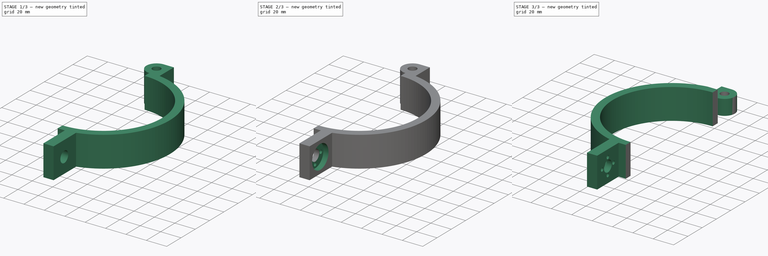
[diagram: build sequence overview — one tinted view per stage of 3, left to right]
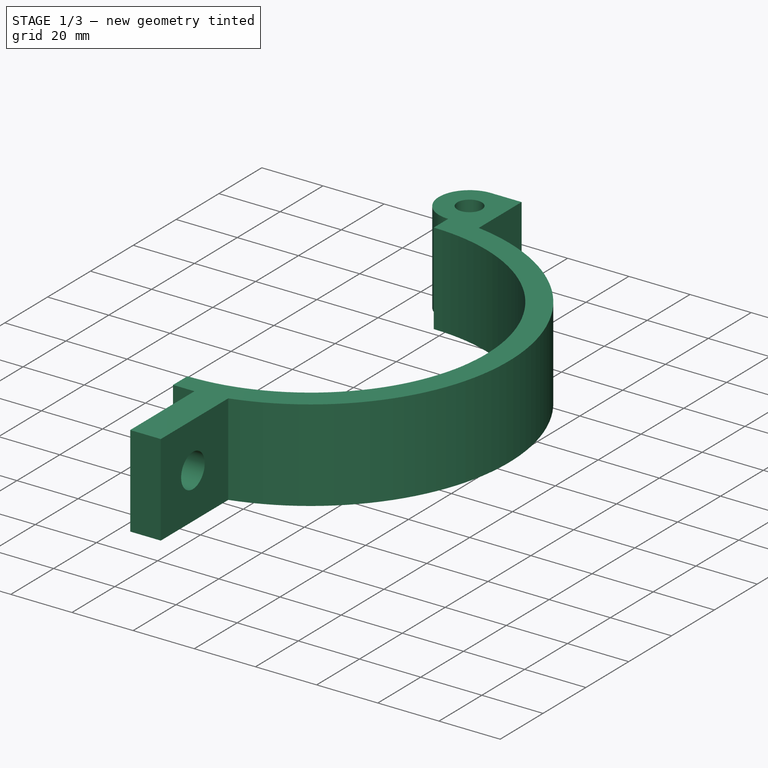
[diagram: stage 1 of 3 — iso view after this stage's code; geometry added in this stage tinted green]
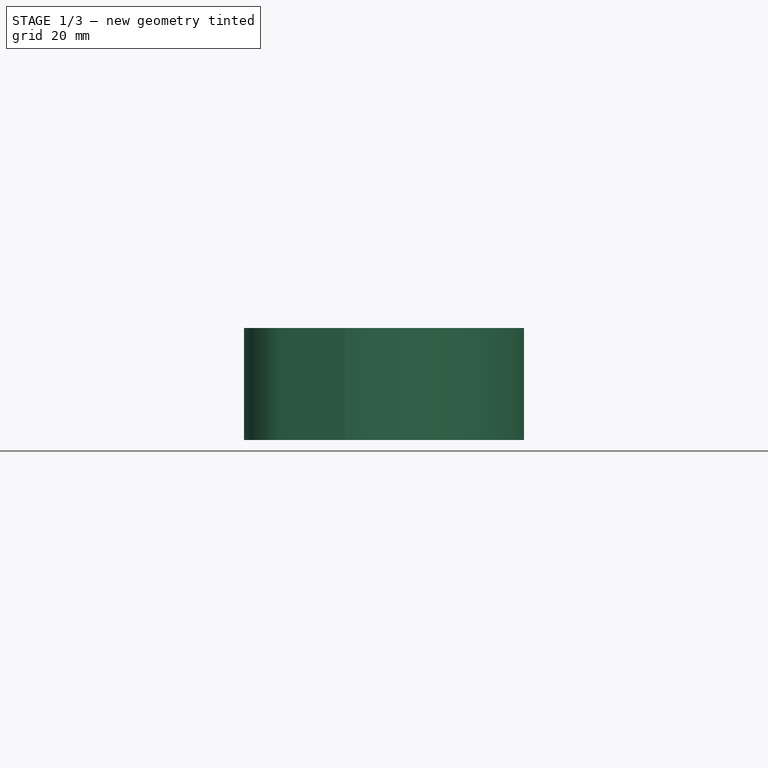
[diagram: stage 1 of 3 — front view after this stage's code; geometry added in this stage tinted green]
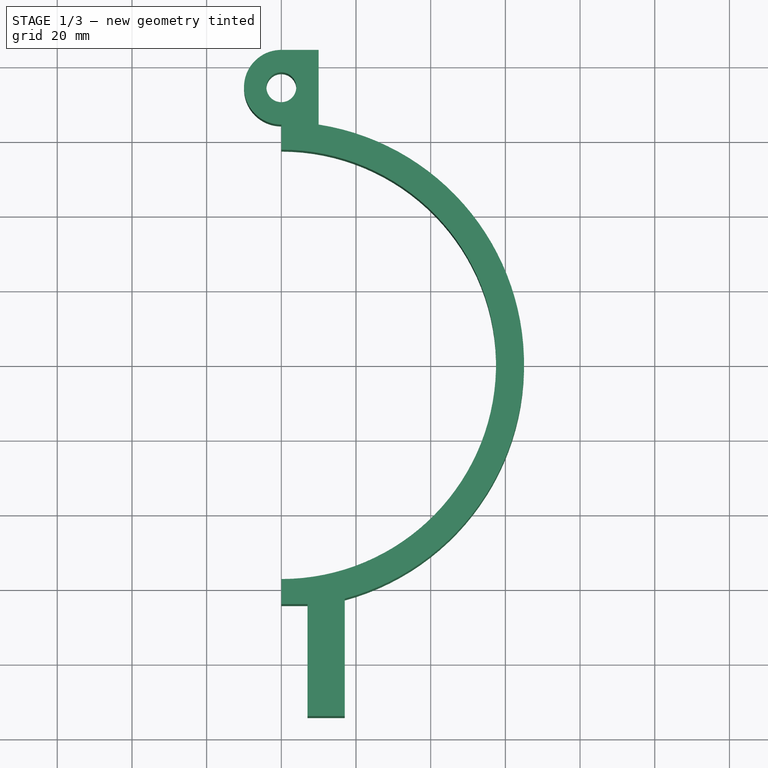
[diagram: stage 1 of 3 — top view after this stage's code; geometry added in this stage tinted green]
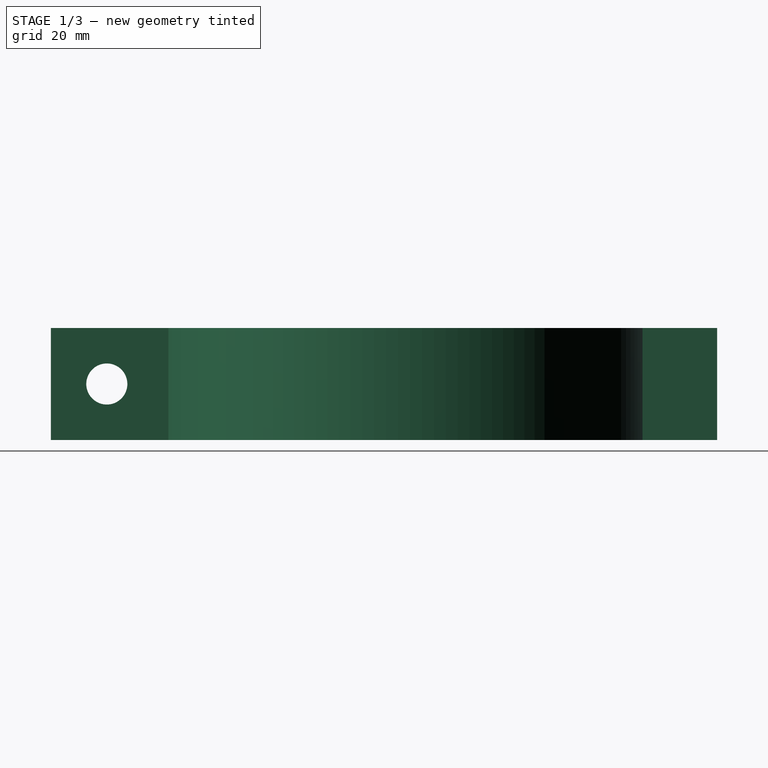
[diagram: stage 1 of 3 — right view after this stage's code; geometry added in this stage tinted green]
FCSTD DOCUMENT  (FreeCAD 1.0R39109 (Git))
Label: close_winds
License: All rights reserved
LicenseURL: https://en.wikipedia.org/wiki/All_rights_reserved
objects: Sketcher::SketchObject×5, PartDesign::Pocket×4, PartDesign::Pad×1, PartDesign::Body×1, Part::Mirroring×1
note: 27 computed .brp shape members not serialized (recipe doc carries the construction recipe); baked Part::Feature solids carry a one-line shape summary decoded from their .brp

FEATURE [Sketcher::SketchObject] Sketch
  ArcFitTolerance = 1e-06
  AttachmentSupport = -> [XY_Plane]
  FullyConstrained = true
  MakeInternals = false
  MapMode = 5
  sketch-geometry (13):
    g0: ArcOfCircle CenterX=0 CenterY=0 CenterZ=0 NormalX=0 NormalY=0 NormalZ=1 AngleXU=0 Radius=57.5 StartAngle=4.71239 EndAngle=7.85398
    g1: ArcOfCircle CenterX=0 CenterY=0 CenterZ=0 NormalX=0 NormalY=0 NormalZ=1 AngleXU=0 Radius=65 StartAngle=4.977 EndAngle=7.69952
    g2: Circle CenterX=0 CenterY=74.2262 CenterZ=0 NormalX=0 NormalY=0 NormalZ=1 AngleXU=0 Radius=4
    g3: ArcOfCircle CenterX=0 CenterY=74.2262 CenterZ=0 NormalX=0 NormalY=0 NormalZ=1 AngleXU=0 Radius=10 StartAngle=1.5708 EndAngle=4.71239
    g4: LineSegment StartX=6e-16 StartY=84.2262 StartZ=0 EndX=10 EndY=84.2262 EndZ=0
    g5: LineSegment StartX=10 StartY=84.2262 StartZ=0 EndX=10 EndY=64.2262 EndZ=0
    g6: LineSegment StartX=-1.8e-15 StartY=64.2262 StartZ=0 EndX=1.76e-14 EndY=57.5 EndZ=0
    g7: LineSegment StartX=-1.07e-14 StartY=-57.5 StartZ=0 EndX=-1.07e-14 EndY=-64.2262 EndZ=0
    g8: LineSegment StartX=17 StartY=-62.7375 StartZ=0 EndX=17 EndY=-94.2262 EndZ=0
    g9: LineSegment StartX=17 StartY=-94.2262 StartZ=0 EndX=7 EndY=-94.2262 EndZ=0
    g10: LineSegment StartX=7 StartY=-94.2262 StartZ=0 EndX=7 EndY=-64.2262 EndZ=0
    g11: LineSegment StartX=7 StartY=-64.2262 StartZ=0 EndX=-1.07e-14 EndY=-64.2262 EndZ=0
    g12: LineSegment [constr] StartX=10 StartY=-90.7262 StartZ=0 EndX=10 EndY=-67.7262 EndZ=0
  constraints (39):
    c: Coincident(g0,g-1)
    c: PointOnObject(g0,g-2)
    c: PointOnObject(g0,g-2)
    c: Radius(g0) = 57.5
    c: Coincident(g1,g0)
    c: Diameter(g2) = 8
    c: PointOnObject(g2,g-2)
    c: Coincident(g3,g2)
    c: PointOnObject(g3,g-2)
    c: PointOnObject(g3,g-2)
    c: Radius(g3) = 10
    c: Radius(g1) = 65
    c: Tangent(g3,g4) = 1.5708
    c: Coincident(g4,g5)
    c: Coincident(g5,g1)
    c: Vertical(g5)
    c: Coincident(g3,g6)
    c: Coincident(g6,g0)
    c: Horizontal(g3,g1)
    c: DistanceX(g4,g4) = 10
    c: Coincident(g0,g7)
    c: Coincident(g1,g8)
    c: Coincident(g8,g9)
    c: Coincident(g9,g10)
    c: Vertical(g10)
    c: Coincident(g10,g11)
    c: Coincident(g11,g7)
    c: Horizontal(g11)
    c: Horizontal(g9)
    c: Vertical(g8)
    c: Vertical(g7)
    c: Equal(g6,g7)
    c: DistanceY(g10,g10) = 30
    c: Distance(g12) = 23
    c: Vertical(g12)
    c: DistanceX(g11,g11) = 7
    c: DistanceX(g9,g9) = 10
    c: DistanceY(g9,g12) = 3.5
    c: DistanceX(g-1,g12) = 10
FEATURE [PartDesign::Pad] Pad
  Direction = (0,0,1)
  Length = 30
  Length2 = 10
  Profile = -> Sketch
  ReferenceAxis = -> Sketch [N_Axis]
  Refine = true
  Suppressed = false
  Type = 0
FEATURE [Sketcher::SketchObject] Sketch001
  ArcFitTolerance = 1e-06
  AttachmentSupport = -> [Pad]
  FullyConstrained = true
  MakeInternals = false
  MapMode = 5
  Placement = pos=(7,0,0) rot=(0.57735,-0.57735,-0.57735;2.0944rad)
  sketch-geometry (2):
    g0: Circle CenterX=79.23 CenterY=15 CenterZ=0 NormalX=0 NormalY=0 NormalZ=1 AngleXU=0 Radius=5.5
    g1: LineSegment [constr] StartX=0 StartY=0 StartZ=0 EndX=94.23 EndY=0 EndZ=0
  constraints (6):
    c: PointOnObject(g1,g-1)
    c: DistanceX(g1,g1) = 94.23
    c: Coincident(g1,g-1)
    c: DistanceX(g0,g1) = 15
    c: DistanceY(g-1,g0) = 15
    c: Diameter(g0) = 11
FEATURE [PartDesign::Pocket] Pocket
  BaseFeature = -> Pad
  Direction = (1,0,0)
  Length = 10
  Length2 = 5
  Profile = -> Sketch001
  ReferenceAxis = -> Sketch001 [N_Axis]
  Refine = true
  Suppressed = false
  Type = 0
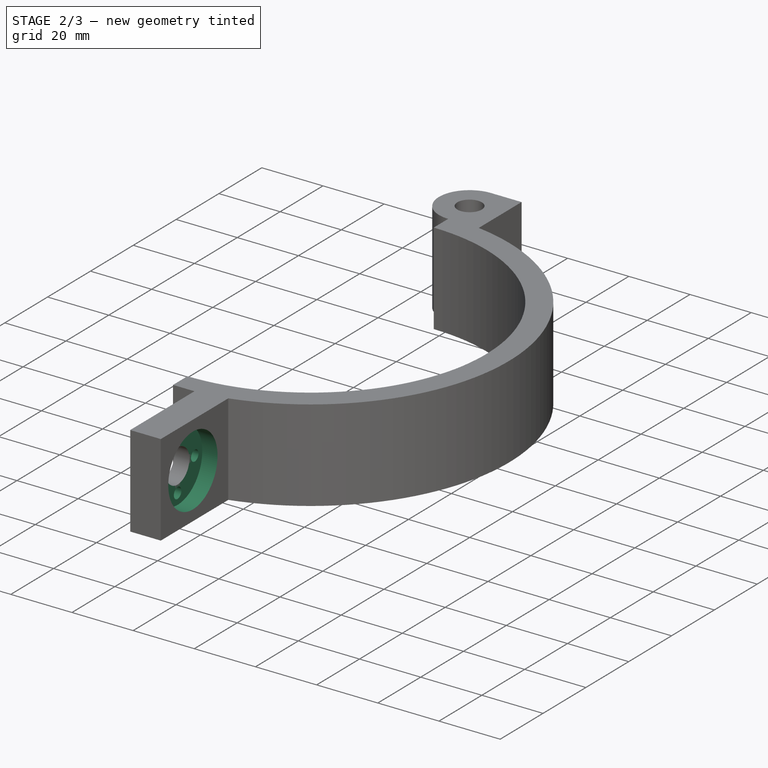
[diagram: stage 2 of 3 — iso view after this stage's code; geometry added in this stage tinted green]
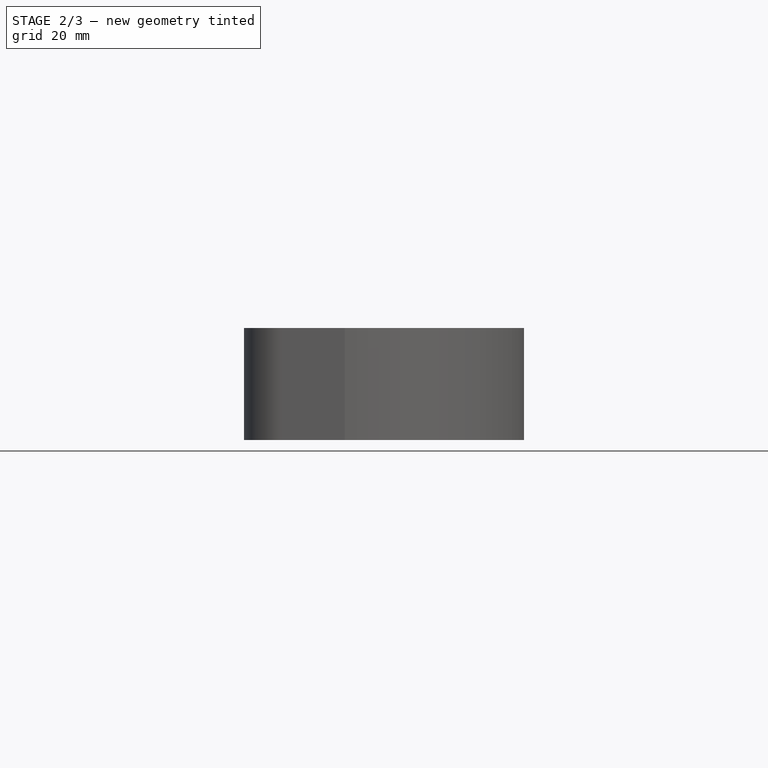
[diagram: stage 2 of 3 — front view after this stage's code; geometry added in this stage tinted green]
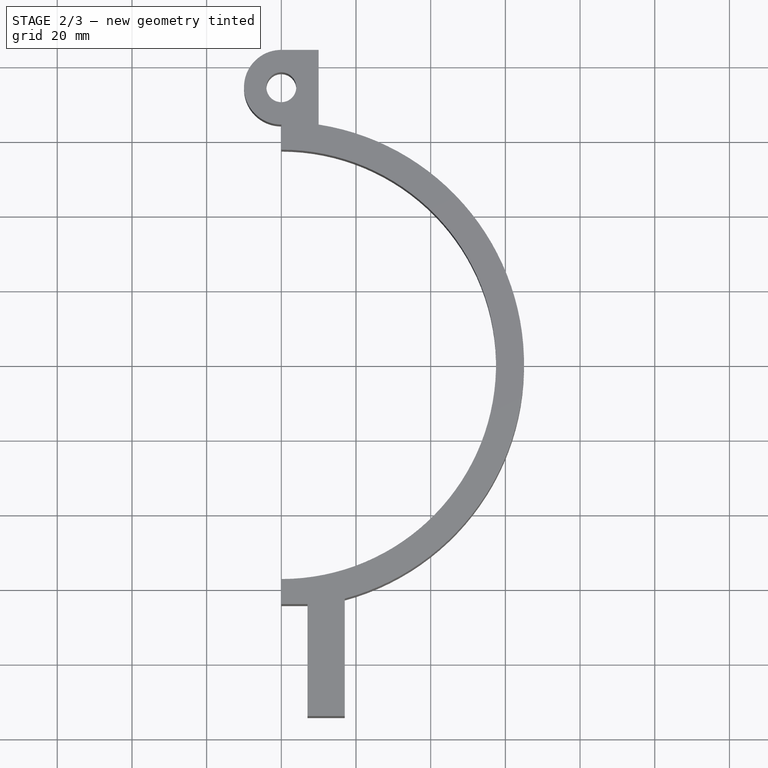
[diagram: stage 2 of 3 — top view after this stage's code; geometry added in this stage tinted green]
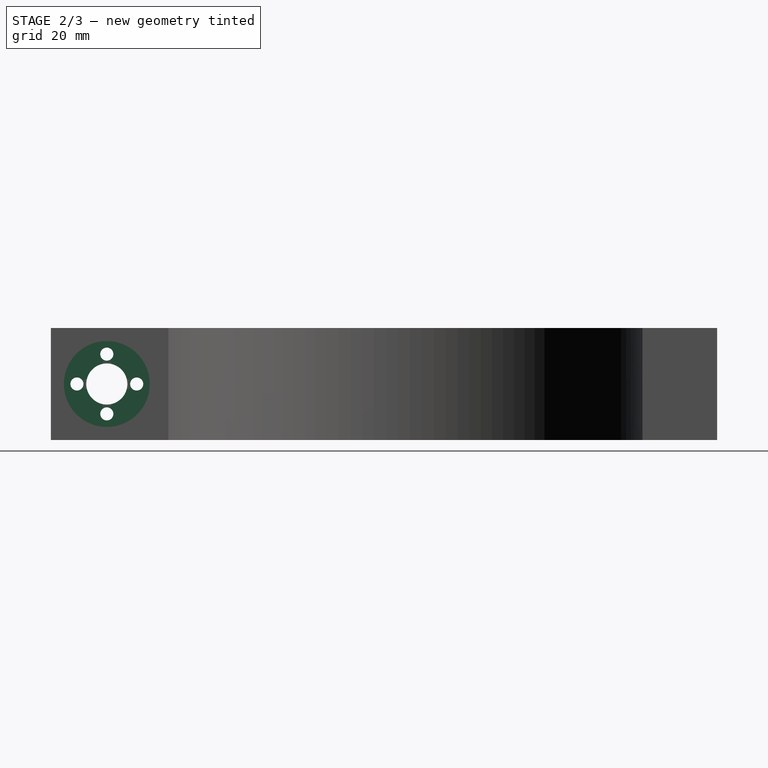
[diagram: stage 2 of 3 — right view after this stage's code; geometry added in this stage tinted green]
FEATURE [Sketcher::SketchObject] Sketch002
  ArcFitTolerance = 1e-06
  AttachmentSupport = -> [Pocket]
  FullyConstrained = true
  MakeInternals = false
  MapMode = 5
  Placement = pos=(17,0,0) rot=(0.57735,0.57735,0.57735;2.0944rad)
  sketch-geometry (2):
    g0: Circle CenterX=-79.23 CenterY=15 CenterZ=0 NormalX=0 NormalY=0 NormalZ=1 AngleXU=0 Radius=11.5
    g1: LineSegment [constr] StartX=0 StartY=0 StartZ=0 EndX=-94.23 EndY=0 EndZ=0
  constraints (6):
    c: Diameter(g0) = 23
    c: Coincident(g1,g-1)
    c: PointOnObject(g1,g-1)
    c: DistanceX(g1,g1) = 94.23
    c: DistanceX(g1,g0) = 15
    c: DistanceY(g-1,g0) = 15
FEATURE [PartDesign::Pocket] Pocket001
  BaseFeature = -> Pocket
  Direction = (-1,0,0)
  Length = 5
  Length2 = 5
  Profile = -> Sketch002
  ReferenceAxis = -> Sketch002 [N_Axis]
  Refine = true
  Suppressed = false
  Type = 0
FEATURE [Sketcher::SketchObject] Sketch003
  ArcFitTolerance = 1e-06
  AttachmentSupport = -> [Pocket001]
  FullyConstrained = true
  MakeInternals = false
  MapMode = 5
  Placement = pos=(12,0,0) rot=(0.57735,0.57735,0.57735;2.0944rad)
  sketch-geometry (6):
    g0: LineSegment [constr] StartX=0 StartY=0 StartZ=0 EndX=-94.23 EndY=0 EndZ=0
    g1: Circle [constr] CenterX=-79.23 CenterY=15 CenterZ=0 NormalX=0 NormalY=0 NormalZ=1 AngleXU=0 Radius=8
    g2: Circle CenterX=-87.23 CenterY=15 CenterZ=0 NormalX=0 NormalY=0 NormalZ=1 AngleXU=0 Radius=1.75
    g3: Circle CenterX=-79.23 CenterY=23 CenterZ=0 NormalX=0 NormalY=0 NormalZ=1 AngleXU=0 Radius=1.75
    g4: Circle CenterX=-71.23 CenterY=15 CenterZ=0 NormalX=0 NormalY=0 NormalZ=1 AngleXU=0 Radius=1.75
    g5: Circle CenterX=-79.23 CenterY=7 CenterZ=0 NormalX=0 NormalY=0 NormalZ=1 AngleXU=0 Radius=1.75
  constraints (18):
    c: Coincident(g0,g-1)
    c: PointOnObject(g0,g-1)
    c: DistanceX(g0,g0) = 94.23
    c: PointOnObject(g2,g1)
    c: PointOnObject(g3,g1)
    c: PointOnObject(g4,g1)
    c: PointOnObject(g5,g1)
    c: DistanceY(g-1,g1) = 15
    c: DistanceX(g0,g1) = 15
    c: Diameter(g1) = 16
    c: Diameter(g3) = 3.5
    c: Equal(g3,g4)
    c: Equal(g4,g5)
    c: Equal(g5,g2)
    c: Horizontal(g2,g4)
    c: Horizontal(g4,g1)
    c: Vertical(g1,g3)
    c: Vertical(g3,g5)
FEATURE [PartDesign::Pocket] Pocket002
  BaseFeature = -> Pocket001
  Direction = (-1,0,0)
  Length = 5
  Length2 = 5
  Profile = -> Sketch003
  ReferenceAxis = -> Sketch003 [N_Axis]
  Refine = true
  Suppressed = false
  Type = 1
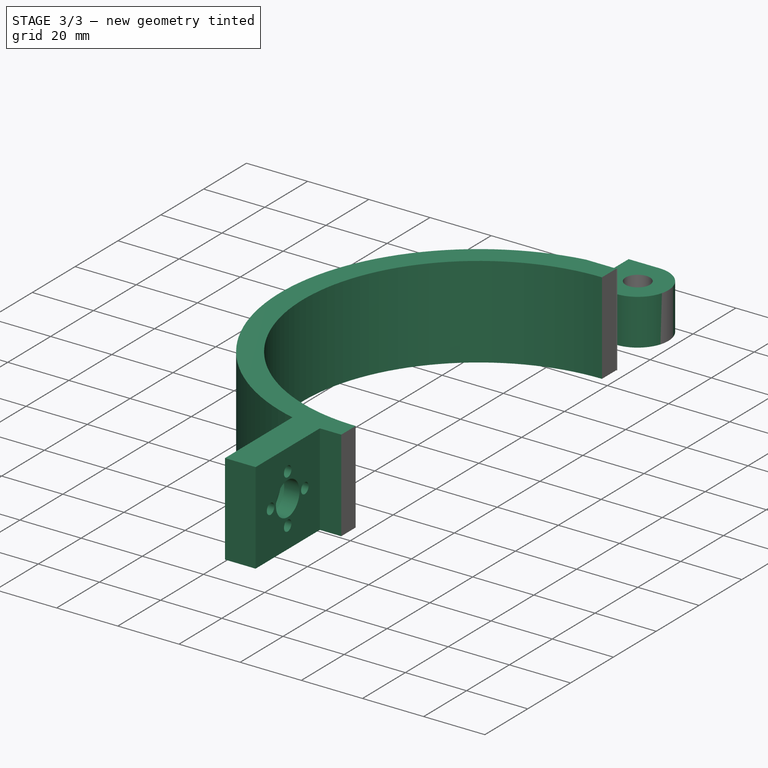
[diagram: stage 3 of 3 — iso view after this stage's code; geometry added in this stage tinted green]
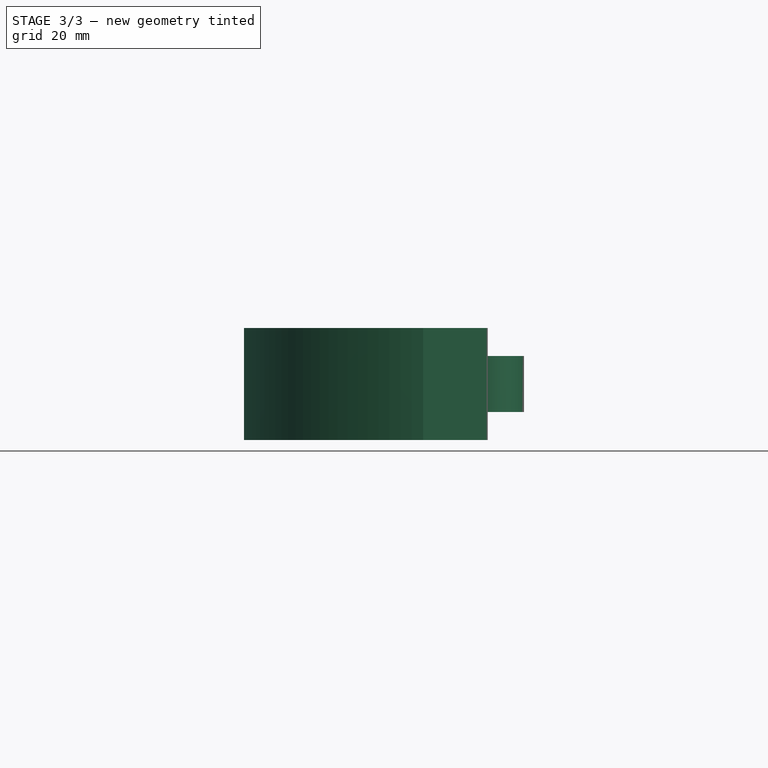
[diagram: stage 3 of 3 — front view after this stage's code; geometry added in this stage tinted green]
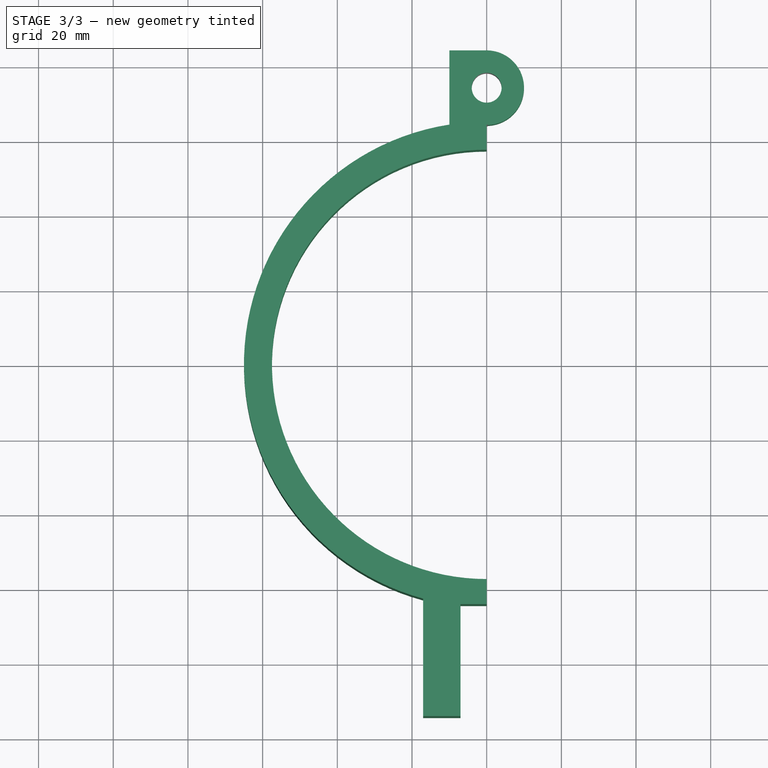
[diagram: stage 3 of 3 — top view after this stage's code; geometry added in this stage tinted green]
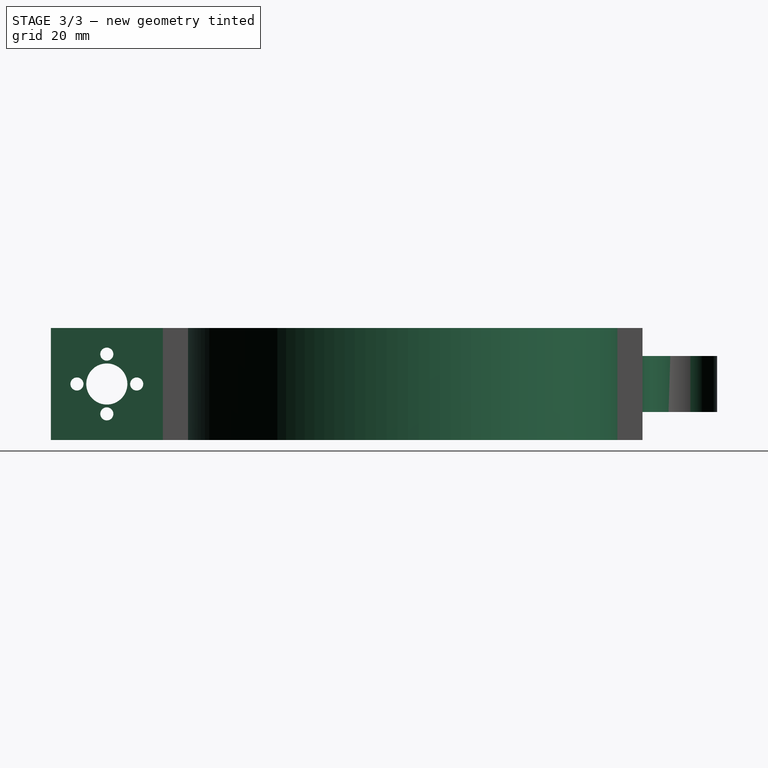
[diagram: stage 3 of 3 — right view after this stage's code; geometry added in this stage tinted green]
FEATURE [Sketcher::SketchObject] Sketch005
  ArcFitTolerance = 1e-06
  AttachmentSupport = -> [Pocket002]
  FullyConstrained = true
  MakeInternals = false
  MapMode = 5
  Placement = pos=(10,0,0) rot=(0.57735,0.57735,0.57735;2.0944rad)
  sketch-geometry (8):
    g0: LineSegment StartX=64.23 StartY=30 StartZ=0 EndX=64.23 EndY=22.5 EndZ=0
    g1: LineSegment StartX=64.23 StartY=22.5 StartZ=0 EndX=84.23 EndY=22.5 EndZ=0
    g2: LineSegment StartX=84.23 StartY=22.5 StartZ=0 EndX=84.23 EndY=30 EndZ=0
    g3: LineSegment StartX=84.23 StartY=30 StartZ=0 EndX=64.23 EndY=30 EndZ=0
    g4: LineSegment StartX=84.23 StartY=0 StartZ=0 EndX=84.23 EndY=7.5 EndZ=0
    g5: LineSegment StartX=84.23 StartY=7.5 StartZ=0 EndX=64.23 EndY=7.5 EndZ=0
    g6: LineSegment StartX=64.23 StartY=7.5 StartZ=0 EndX=64.23 EndY=0 EndZ=0
    g7: LineSegment StartX=64.23 StartY=0 StartZ=0 EndX=84.23 EndY=0 EndZ=0
  constraints (24):
    c: Coincident(g0,g1)
    c: Coincident(g1,g2)
    c: Coincident(g2,g3)
    c: Coincident(g3,g0)
    c: Vertical(g0)
    c: Vertical(g2)
    c: Horizontal(g1)
    c: Horizontal(g3)
    c: Coincident(g4,g5)
    c: Coincident(g5,g6)
    c: Coincident(g6,g7)
    c: Coincident(g7,g4)
    c: Vertical(g4)
    c: Vertical(g6)
    c: Horizontal(g5)
    c: Horizontal(g7)
    c: Vertical(g0,g5)
    c: Equal(g1,g5)
    c: Equal(g4,g2)
    c: DistanceY(g2,g2) = 7.5
    c: DistanceY(g4,g1) = 15
    c: Horizontal(g-1,g6)
    c: DistanceX(g-1,g5) = 64.23
    c: DistanceX(g3,g3) = 20
FEATURE [PartDesign::Pocket] Pocket004
  BaseFeature = -> Pocket002
  Direction = (-1,0,0)
  Length = 5
  Length2 = 5
  Profile = -> Sketch005
  ReferenceAxis = -> Sketch005 [N_Axis]
  Refine = true
  Suppressed = false
  Type = 1
FEATURE [PartDesign::Body] Body
  AllowCompound = false
  Group = -> [Sketch,Pad,Sketch001,Pocket,Sketch002,Pocket001,Sketch003,Pocket002,Sketch005,Pocket004]
  Origin = -> Origin
  Tip = -> Pocket004
FEATURE [Part::Mirroring] Part__Mirroring  label="Body (Mirror #1)"
  Base = (0,0,0)
  Normal = (1,0,0)
  Source = -> Body
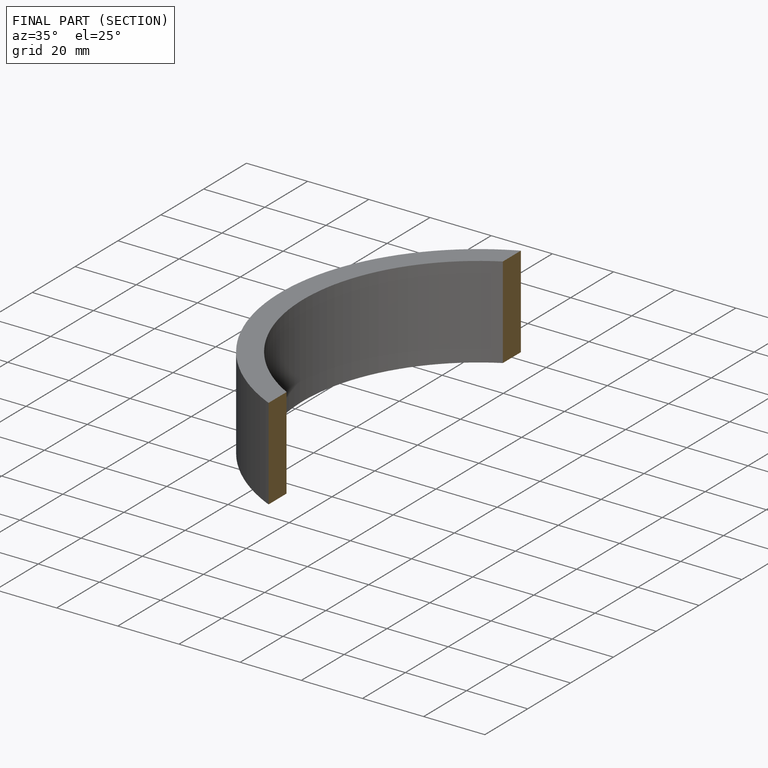
[diagram: finished part — half-section view (interior)]
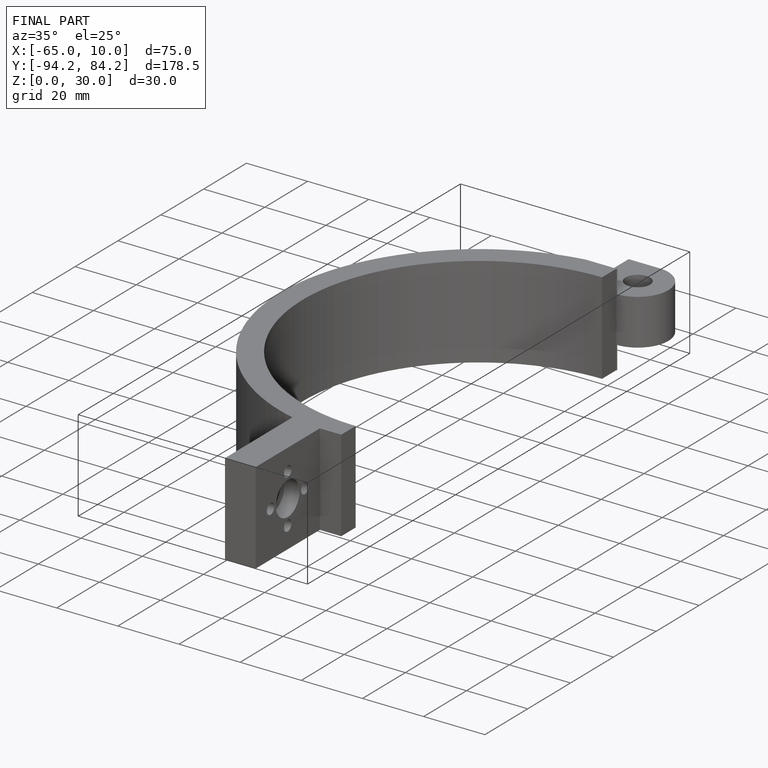
[diagram: finished part — iso view with bounding-box wireframe]
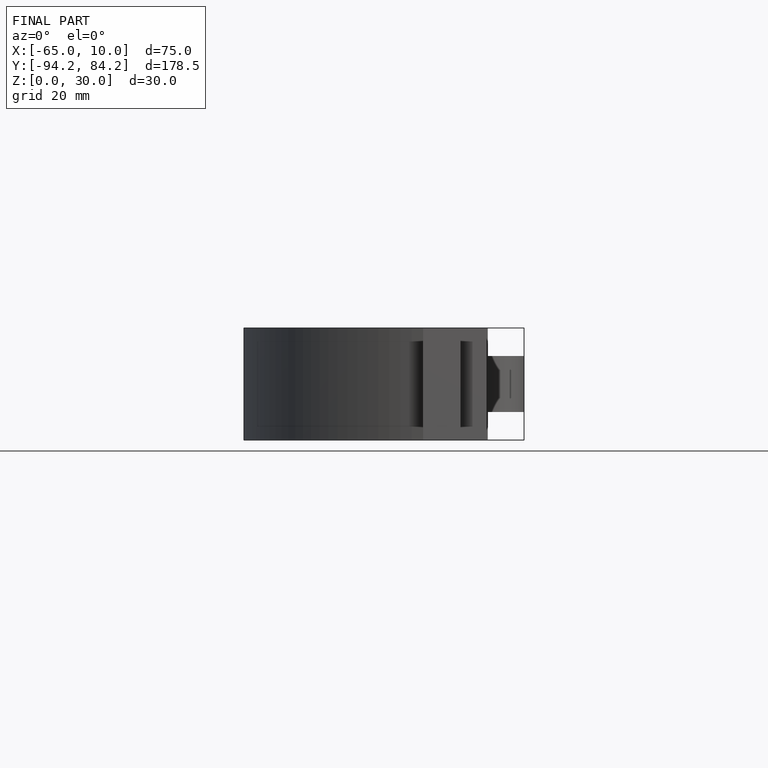
[diagram: finished part — front view with bounding-box wireframe]
